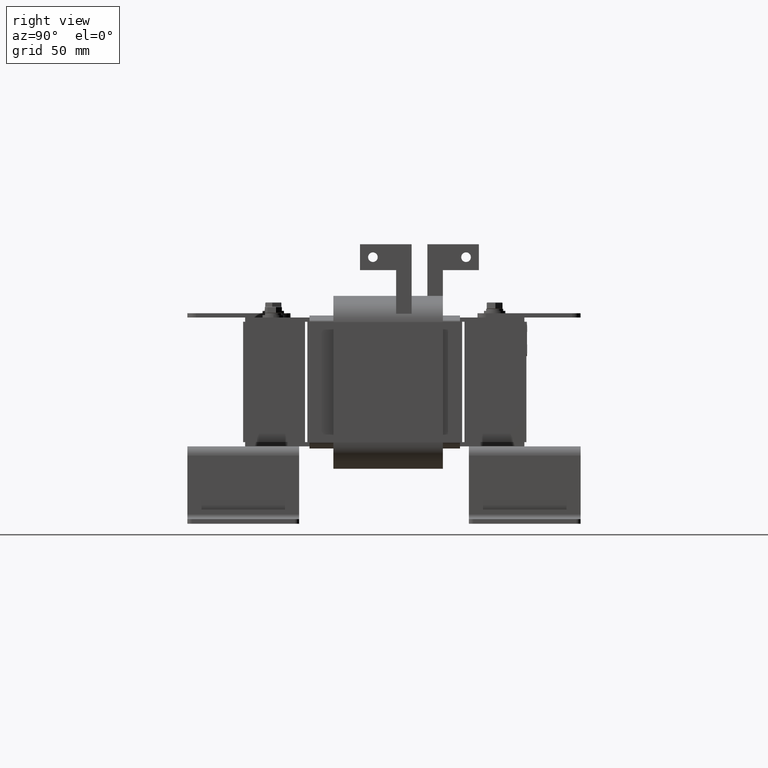
[diagram: clean part render]
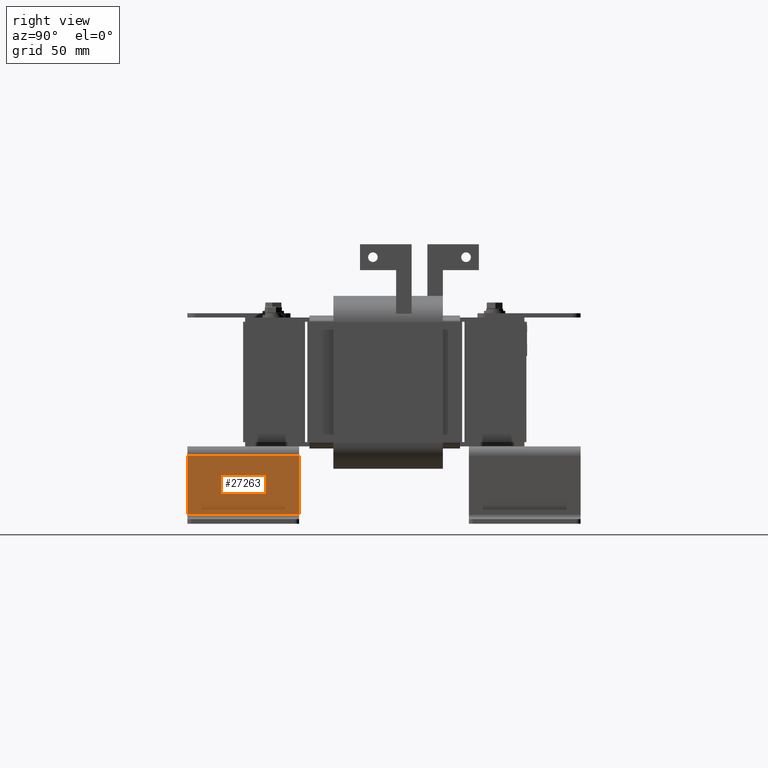
[diagram: same view with one face highlighted and labeled with its STEP entity id]
A machine part, right view. The second image highlights one B-rep face of the part: STEP entity #27263.
In plain terms, the highlighted planar face has unit normal (1, 0, -0).
Its self-contained STEP definition (entity closure, byte-faithful):
#1325=PLANE('',#29116);
#2397=FACE_OUTER_BOUND('',#3940,.T.);
#3940=EDGE_LOOP('',(#21078,#21079,#21080,#21081));
#5931=LINE('',#44336,#8650);
#5932=LINE('',#44339,#8651);
#5935=LINE('',#44345,#8654);
#5936=LINE('',#44346,#8655);
#8650=VECTOR('',#32986,0.393700787401575);
#8651=VECTOR('',#32989,0.19368);
#8654=VECTOR('',#32994,0.19368);
#8655=VECTOR('',#32995,0.393700787401575);
#12323=VERTEX_POINT('',#44325);
#12324=VERTEX_POINT('',#44329);
#12325=VERTEX_POINT('',#44338);
#12327=VERTEX_POINT('',#44344);
#15527=EDGE_CURVE('',#12323,#12324,#5931,.T.);
#15528=EDGE_CURVE('',#12325,#12323,#5932,.T.);
#15531=EDGE_CURVE('',#12327,#12324,#5935,.T.);
#15532=EDGE_CURVE('',#12327,#12325,#5936,.T.);
#21078=ORIENTED_EDGE('',*,*,#15527,.T.);
#21079=ORIENTED_EDGE('',*,*,#15531,.F.);
#21080=ORIENTED_EDGE('',*,*,#15532,.T.);
#21081=ORIENTED_EDGE('',*,*,#15528,.T.);
#27263=ADVANCED_FACE('',(#2397),#1325,.T.);
#29116=AXIS2_PLACEMENT_3D('',#44343,#32992,#32993);
#32986=DIRECTION('',(-1.6545838799023E-15,1.,1.2911133902364E-15));
#32989=DIRECTION('',(-8.88178419700125E-15,3.06161699786834E-16,-1.));
#32992=DIRECTION('center_axis',(1.,1.65458387990231E-15,-9.37210918415737E-15));
#32993=DIRECTION('ref_axis',(-9.37210918415736E-15,-4.30371130078805E-16,
-1.));
#32994=DIRECTION('',(-1.61035219745524E-14,3.06161699786831E-16,-1.));
#32995=DIRECTION('',(1.65458387990231E-15,-1.,-1.07982320438726E-29));
#44325=CARTESIAN_POINT('',(12.,-4.3498980099138E-16,-1.84650000000001));
#44329=CARTESIAN_POINT('',(12.,3.25,-1.8465));
#44336=CARTESIAN_POINT('',(12.,2.4375,-1.8465));
#44338=CARTESIAN_POINT('',(12.,9.26343979866543E-17,-0.134500000000005));
#44339=CARTESIAN_POINT('',(12.,-9.36538719933598E-17,0.473963665147265));
#44343=CARTESIAN_POINT('Origin',(12.,1.625,-0.972884083713183));
#44344=CARTESIAN_POINT('',(12.,3.25,-0.134500000000004));
#44345=CARTESIAN_POINT('',(12.,3.25,0.473963665147265));
#44346=CARTESIAN_POINT('',(12.,1.625,-0.134500000000002));